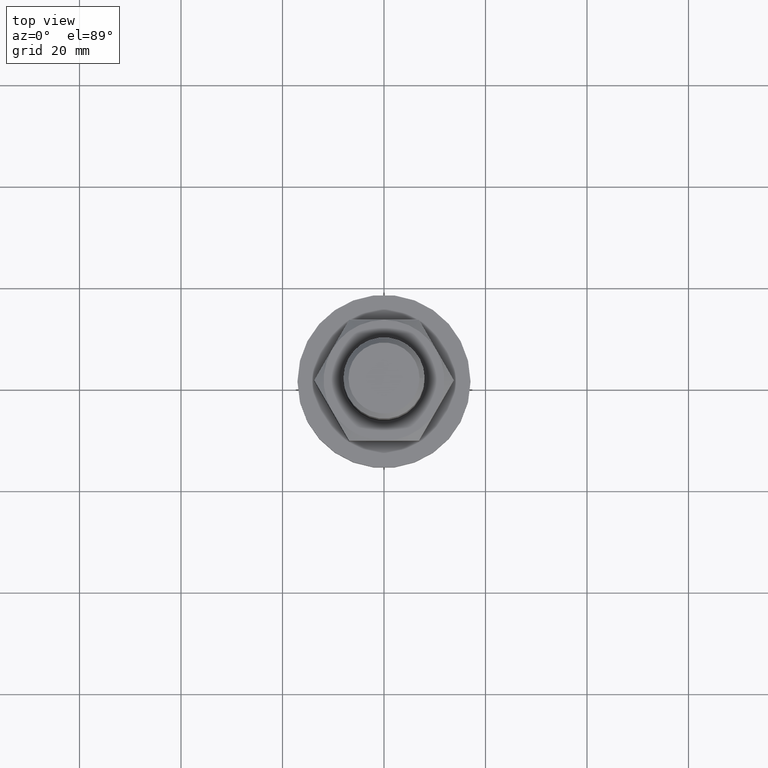
[diagram: clean part render]
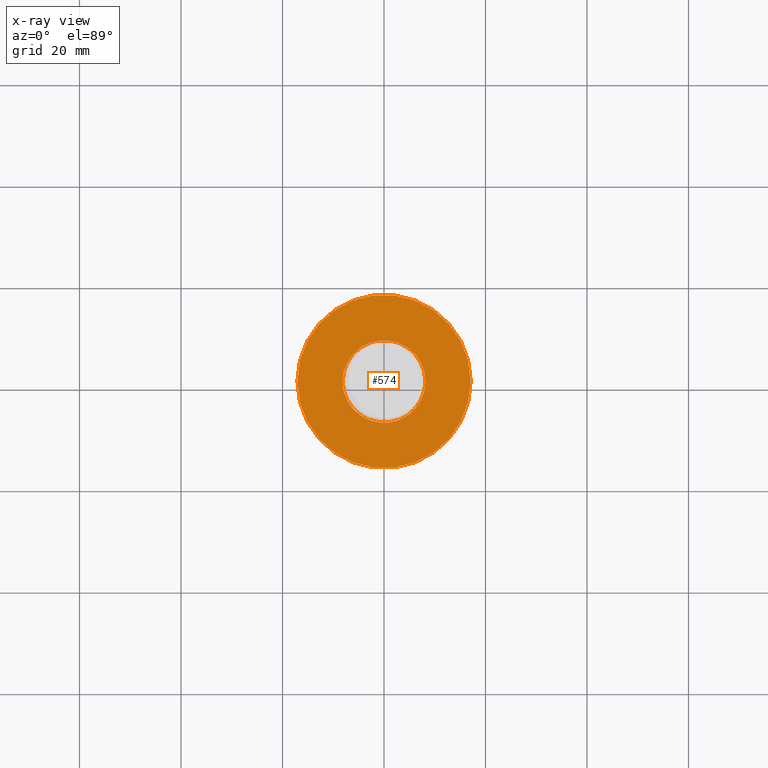
[diagram: x-ray — body ghosted, one internal face saturated and labeled with its STEP entity id]
A machine part, top view, then the same camera in x-ray: the body is ghosted and one INTERNAL B-rep face — a face not visible from any outside direction — is saturated and labeled: STEP entity #574.
In plain terms, the highlighted planar face has unit normal (0, 0, 1).
Its self-contained STEP definition (entity closure, byte-faithful):
#65 = FACE_OUTER_BOUND ( 'NONE', #5498, .T. ) ;
#148 = DIRECTION ( 'NONE',  ( 0.000000000000000000, 0.000000000000000000, 1.000000000000000000 ) ) ;
#209 = PLANE ( 'NONE',  #4105 ) ;
#574 = ADVANCED_FACE ( 'NONE', ( #65, #1034 ), #209, .T. ) ;
#689 = CARTESIAN_POINT ( 'NONE',  ( 0.000000000000000000, 0.000000000000000000, 1.000000000000000888 ) ) ;
#970 = ORIENTED_EDGE ( 'NONE', *, *, #3727, .T. ) ;
#1034 = FACE_BOUND ( 'NONE', #5409, .T. ) ;
#1149 = DIRECTION ( 'NONE',  ( 1.000000000000000000, 0.000000000000000000, 0.000000000000000000 ) ) ;
#1227 = ORIENTED_EDGE ( 'NONE', *, *, #3410, .F. ) ;
#1627 = DIRECTION ( 'NONE',  ( 0.000000000000000000, 0.000000000000000000, 1.000000000000000000 ) ) ;
#1719 = CARTESIAN_POINT ( 'NONE',  ( 8.150000000000000355, 0.000000000000000000, 1.000000000000000888 ) ) ;
#1742 = CARTESIAN_POINT ( 'NONE',  ( 17.05000000000000071, 0.000000000000000000, 1.000000000000000888 ) ) ;
#1864 = VERTEX_POINT ( 'NONE', #1742 ) ;
#2416 = CIRCLE ( 'NONE', #6070, 8.150000000000000355 ) ;
#2531 = DIRECTION ( 'NONE',  ( 1.000000000000000000, 0.000000000000000000, -0.000000000000000000 ) ) ;
#2683 = DIRECTION ( 'NONE',  ( 1.000000000000000000, 0.000000000000000000, 0.000000000000000000 ) ) ;
#3058 = DIRECTION ( 'NONE',  ( 0.000000000000000000, 0.000000000000000000, 1.000000000000000000 ) ) ;
#3410 = EDGE_CURVE ( 'NONE', #6017, #6017, #2416, .T. ) ;
#3498 = CARTESIAN_POINT ( 'NONE',  ( 0.000000000000000000, 0.000000000000000000, 1.000000000000000888 ) ) ;
#3727 = EDGE_CURVE ( 'NONE', #1864, #1864, #4996, .T. ) ;
#4105 = AXIS2_PLACEMENT_3D ( 'NONE', #4382, #148, #2531 ) ;
#4382 = CARTESIAN_POINT ( 'NONE',  ( 0.000000000000000000, 0.000000000000000000, 1.000000000000000888 ) ) ;
#4996 = CIRCLE ( 'NONE', #5752, 17.05000000000000071 ) ;
#5409 = EDGE_LOOP ( 'NONE', ( #1227 ) ) ;
#5498 = EDGE_LOOP ( 'NONE', ( #970 ) ) ;
#5752 = AXIS2_PLACEMENT_3D ( 'NONE', #3498, #3058, #1149 ) ;
#6017 = VERTEX_POINT ( 'NONE', #1719 ) ;
#6070 = AXIS2_PLACEMENT_3D ( 'NONE', #689, #1627, #2683 ) ;